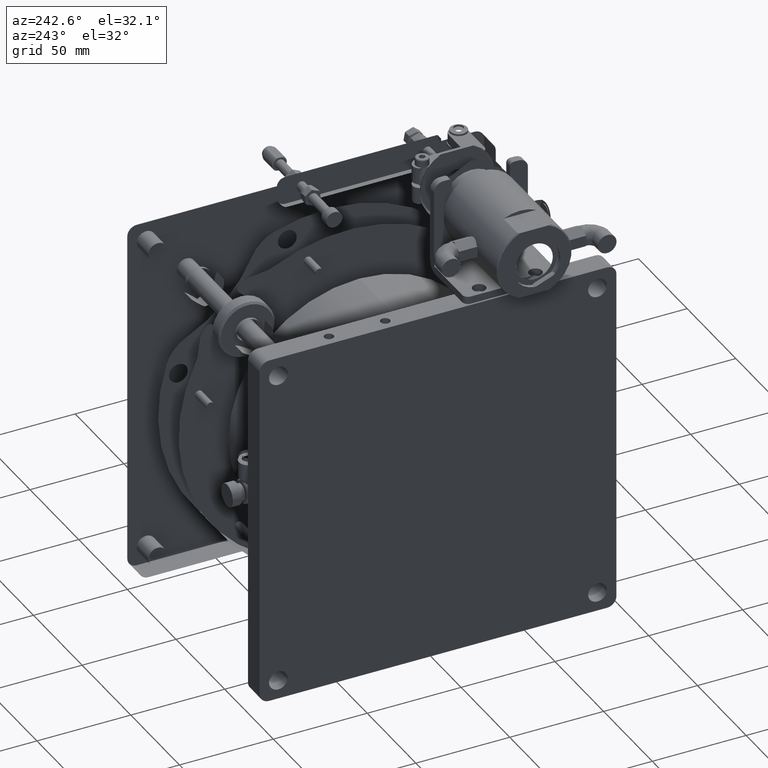
[diagram: clean part render]
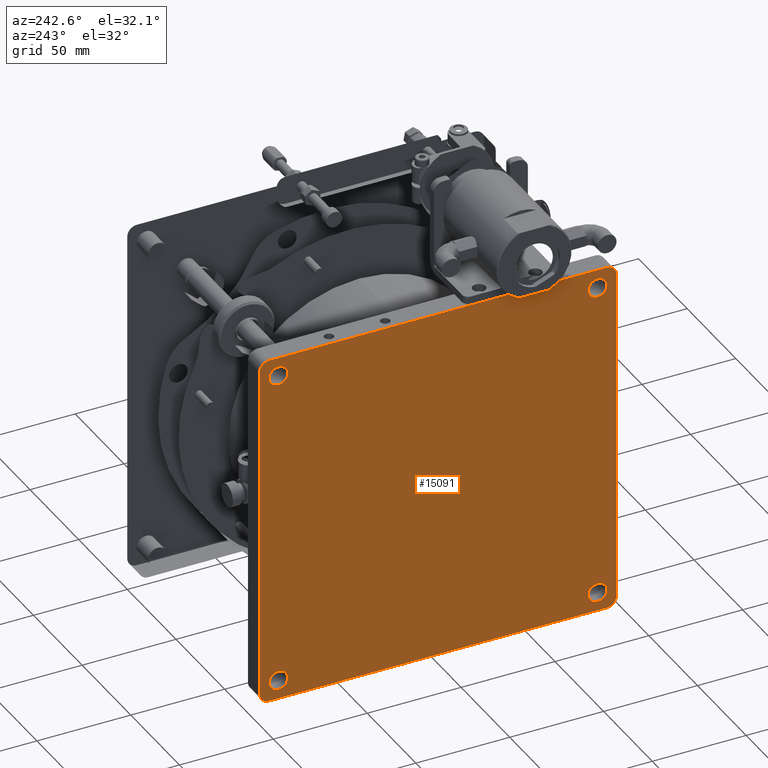
[diagram: same view with one face highlighted and labeled with its STEP entity id]
A machine part, auxiliary view. The second image highlights one B-rep face of the part: STEP entity #15091.
In plain terms, the highlighted planar face has unit normal (-1, 0, 0).
Its self-contained STEP definition (entity closure, byte-faithful):
#227 = AXIS2_PLACEMENT_3D ( 'NONE', #9605, #9264, #7826 ) ;
#336 = FACE_BOUND ( 'NONE', #3147, .T. ) ;
#343 = EDGE_LOOP ( 'NONE', ( #14167, #1604, #14176, #3132, #14072, #12506, #5297, #7758 ) ) ;
#604 = DIRECTION ( 'NONE',  ( 1.000000000000000000, -3.081487911019577365E-33, -3.473364927200038699E-17 ) ) ;
#687 = CARTESIAN_POINT ( 'NONE',  ( 423.7315486138145957, -90.00000000000000000, 705.0354284903501139 ) ) ;
#1347 = DIRECTION ( 'NONE',  ( -1.000000000000000000, 3.081487911019577365E-33, 3.473364927200038699E-17 ) ) ;
#1580 = CARTESIAN_POINT ( 'NONE',  ( 423.7315486138145957, -1.151856388049034573E-15, 610.0354284903502275 ) ) ;
#1604 = ORIENTED_EDGE ( 'NONE', *, *, #8467, .T. ) ;
#1615 = CIRCLE ( 'NONE', #18976, 5.000000000000004441 ) ;
#1736 = DIRECTION ( 'NONE',  ( -1.000000000000000000, 3.081487911019577365E-33, 3.473364927200038699E-17 ) ) ;
#1746 = VERTEX_POINT ( 'NONE', #12936 ) ;
#1803 = VERTEX_POINT ( 'NONE', #8671 ) ;
#1876 = CARTESIAN_POINT ( 'NONE',  ( 423.7315486138145957, 90.00000000000004263, 700.0354284903501139 ) ) ;
#2525 = VERTEX_POINT ( 'NONE', #8289 ) ;
#2584 = DIRECTION ( 'NONE',  ( 0.000000000000000000, 0.000000000000000000, 1.000000000000000000 ) ) ;
#2601 = ORIENTED_EDGE ( 'NONE', *, *, #20443, .T. ) ;
#2888 = CARTESIAN_POINT ( 'NONE',  ( 423.7315486138145957, -95.00000000000002842, 520.0354284903502275 ) ) ;
#3022 = VERTEX_POINT ( 'NONE', #18673 ) ;
#3132 = ORIENTED_EDGE ( 'NONE', *, *, #5907, .T. ) ;
#3147 = EDGE_LOOP ( 'NONE', ( #4091 ) ) ;
#3188 = CARTESIAN_POINT ( 'NONE',  ( 423.7315486138145957, -1.151856388049034573E-15, 515.0354284903502275 ) ) ;
#3488 = CIRCLE ( 'NONE', #16958, 5.000000000000004441 ) ;
#3567 = VERTEX_POINT ( 'NONE', #7002 ) ;
#3588 = DIRECTION ( 'NONE',  ( -3.473364927200038699E-17, -0.000000000000000000, -1.000000000000000000 ) ) ;
#3610 = VERTEX_POINT ( 'NONE', #687 ) ;
#3735 = CIRCLE ( 'NONE', #17548, 5.000000000000004441 ) ;
#3757 = FACE_BOUND ( 'NONE', #14076, .T. ) ;
#3846 = VERTEX_POINT ( 'NONE', #2888 ) ;
#3965 = EDGE_CURVE ( 'NONE', #1746, #3846, #6910, .T. ) ;
#4031 = AXIS2_PLACEMENT_3D ( 'NONE', #17046, #1736, #20345 ) ;
#4091 = ORIENTED_EDGE ( 'NONE', *, *, #15567, .T. ) ;
#4130 = VECTOR ( 'NONE', #21293, 1000.000000000000000 ) ;
#4844 = LINE ( 'NONE', #3188, #5442 ) ;
#4975 = CARTESIAN_POINT ( 'NONE',  ( 423.7315486138145957, 95.00000000000002842, 520.0354284903502275 ) ) ;
#5006 = CARTESIAN_POINT ( 'NONE',  ( 423.7315486138145957, 85.00000000000004263, 530.0354284903502275 ) ) ;
#5024 = DIRECTION ( 'NONE',  ( 1.000000000000000000, -3.081487911019577365E-33, -3.473364927200038699E-17 ) ) ;
#5178 = DIRECTION ( 'NONE',  ( -3.081487911019577365E-33, -1.000000000000000000, 1.070313203372631366E-49 ) ) ;
#5297 = ORIENTED_EDGE ( 'NONE', *, *, #18812, .T. ) ;
#5327 = EDGE_CURVE ( 'NONE', #20063, #1746, #4844, .T. ) ;
#5442 = VECTOR ( 'NONE', #5178, 1000.000000000000000 ) ;
#5497 = CIRCLE ( 'NONE', #227, 5.000000000000004441 ) ;
#5509 = VERTEX_POINT ( 'NONE', #21564 ) ;
#5907 = EDGE_CURVE ( 'NONE', #7259, #20063, #7938, .T. ) ;
#6194 = AXIS2_PLACEMENT_3D ( 'NONE', #16538, #1347, #12992 ) ;
#6910 = CIRCLE ( 'NONE', #6194, 5.000000000000004441 ) ;
#7002 = CARTESIAN_POINT ( 'NONE',  ( 423.7315486138145957, -84.99999999999997158, 700.0354284903502275 ) ) ;
#7259 = VERTEX_POINT ( 'NONE', #4975 ) ;
#7313 = EDGE_LOOP ( 'NONE', ( #2601 ) ) ;
#7758 = ORIENTED_EDGE ( 'NONE', *, *, #21788, .T. ) ;
#7826 = DIRECTION ( 'NONE',  ( 0.000000000000000000, 0.000000000000000000, 1.000000000000000000 ) ) ;
#7938 = CIRCLE ( 'NONE', #4031, 5.000000000000004441 ) ;
#8192 = CARTESIAN_POINT ( 'NONE',  ( 423.7315486138145957, -95.00000000000002842, 610.0354284903502275 ) ) ;
#8289 = CARTESIAN_POINT ( 'NONE',  ( 423.7315486138145957, 95.00000000000005684, 700.0354284903502275 ) ) ;
#8312 = DIRECTION ( 'NONE',  ( -1.000000000000000000, 3.081487911019577365E-33, 3.473364927200038699E-17 ) ) ;
#8366 = CARTESIAN_POINT ( 'NONE',  ( 423.7315486138145957, 95.00000000000005684, 610.0354284903502275 ) ) ;
#8467 = EDGE_CURVE ( 'NONE', #14214, #2525, #9060, .T. ) ;
#8671 = CARTESIAN_POINT ( 'NONE',  ( 423.7315486138145957, -84.99999999999997158, 530.0354284903502275 ) ) ;
#9060 = CIRCLE ( 'NONE', #18658, 5.000000000000004441 ) ;
#9104 = CARTESIAN_POINT ( 'NONE',  ( 423.7315486138145957, -1.151856388049034573E-15, 705.0354284903502275 ) ) ;
#9264 = DIRECTION ( 'NONE',  ( -1.000000000000000000, 3.081487911019577365E-33, 3.473364927200038699E-17 ) ) ;
#9605 = CARTESIAN_POINT ( 'NONE',  ( 423.7315486138145957, -89.99999999999998579, 700.0354284903502275 ) ) ;
#10005 = CARTESIAN_POINT ( 'NONE',  ( 423.7315486138145957, -84.99999999999997158, 525.0354284903502275 ) ) ;
#10013 = DIRECTION ( 'NONE',  ( -1.000000000000000000, 3.081487911019577365E-33, 3.473364927200038699E-17 ) ) ;
#10206 = DIRECTION ( 'NONE',  ( 0.000000000000000000, 0.000000000000000000, 1.000000000000000000 ) ) ;
#10685 = EDGE_CURVE ( 'NONE', #3610, #14214, #10766, .T. ) ;
#10766 = LINE ( 'NONE', #9104, #4130 ) ;
#11675 = FACE_BOUND ( 'NONE', #20113, .T. ) ;
#11785 = DIRECTION ( 'NONE',  ( 3.473364927200038699E-17, 0.000000000000000000, 1.000000000000000000 ) ) ;
#12111 = EDGE_CURVE ( 'NONE', #2525, #7259, #20435, .T. ) ;
#12251 = CARTESIAN_POINT ( 'NONE',  ( 423.7315486138145957, 85.00000000000004263, 525.0354284903502275 ) ) ;
#12290 = ORIENTED_EDGE ( 'NONE', *, *, #16508, .T. ) ;
#12383 = AXIS2_PLACEMENT_3D ( 'NONE', #1580, #10013, #11785 ) ;
#12506 = ORIENTED_EDGE ( 'NONE', *, *, #3965, .T. ) ;
#12936 = CARTESIAN_POINT ( 'NONE',  ( 423.7315486138145957, -90.00000000000001421, 515.0354284903502275 ) ) ;
#12992 = DIRECTION ( 'NONE',  ( 0.000000000000000000, 0.000000000000000000, 1.000000000000000000 ) ) ;
#13145 = CARTESIAN_POINT ( 'NONE',  ( 423.7315486138145957, 90.00000000000001421, 515.0354284903502275 ) ) ;
#13335 = FACE_OUTER_BOUND ( 'NONE', #343, .T. ) ;
#13445 = FACE_BOUND ( 'NONE', #7313, .T. ) ;
#13532 = CARTESIAN_POINT ( 'NONE',  ( 423.7315486138145957, 90.00000000000004263, 705.0354284903501139 ) ) ;
#14072 = ORIENTED_EDGE ( 'NONE', *, *, #5327, .T. ) ;
#14076 = EDGE_LOOP ( 'NONE', ( #18040 ) ) ;
#14167 = ORIENTED_EDGE ( 'NONE', *, *, #10685, .T. ) ;
#14176 = ORIENTED_EDGE ( 'NONE', *, *, #12111, .T. ) ;
#14214 = VERTEX_POINT ( 'NONE', #13532 ) ;
#14633 = LINE ( 'NONE', #8192, #15576 ) ;
#14951 = DIRECTION ( 'NONE',  ( 3.473364927200038699E-17, 0.000000000000000000, 1.000000000000000000 ) ) ;
#15091 = ADVANCED_FACE ( 'NONE', ( #336, #3757, #13335, #13445, #11675 ), #20206, .T. ) ;
#15331 = CARTESIAN_POINT ( 'NONE',  ( 423.7315486138145957, 85.00000000000004263, 695.0354284903502275 ) ) ;
#15567 = EDGE_CURVE ( 'NONE', #16891, #16891, #3488, .T. ) ;
#15576 = VECTOR ( 'NONE', #14951, 1000.000000000000000 ) ;
#15896 = CIRCLE ( 'NONE', #16602, 5.000000000000004441 ) ;
#16508 = EDGE_CURVE ( 'NONE', #3022, #3022, #15896, .T. ) ;
#16538 = CARTESIAN_POINT ( 'NONE',  ( 423.7315486138145957, -90.00000000000001421, 520.0354284903502275 ) ) ;
#16602 = AXIS2_PLACEMENT_3D ( 'NONE', #15331, #20424, #20852 ) ;
#16891 = VERTEX_POINT ( 'NONE', #5006 ) ;
#16913 = CARTESIAN_POINT ( 'NONE',  ( 423.7315486138145957, -84.99999999999997158, 695.0354284903502275 ) ) ;
#16958 = AXIS2_PLACEMENT_3D ( 'NONE', #12251, #604, #2584 ) ;
#17046 = CARTESIAN_POINT ( 'NONE',  ( 423.7315486138145957, 90.00000000000001421, 520.0354284903502275 ) ) ;
#17285 = VECTOR ( 'NONE', #3588, 1000.000000000000000 ) ;
#17548 = AXIS2_PLACEMENT_3D ( 'NONE', #10005, #18546, #21849 ) ;
#18040 = ORIENTED_EDGE ( 'NONE', *, *, #20181, .T. ) ;
#18546 = DIRECTION ( 'NONE',  ( 1.000000000000000000, -3.081487911019577365E-33, -3.473364927200038699E-17 ) ) ;
#18658 = AXIS2_PLACEMENT_3D ( 'NONE', #1876, #8312, #10206 ) ;
#18673 = CARTESIAN_POINT ( 'NONE',  ( 423.7315486138145957, 85.00000000000004263, 700.0354284903502275 ) ) ;
#18812 = EDGE_CURVE ( 'NONE', #3846, #5509, #14633, .T. ) ;
#18976 = AXIS2_PLACEMENT_3D ( 'NONE', #16913, #5024, #20225 ) ;
#20063 = VERTEX_POINT ( 'NONE', #13145 ) ;
#20113 = EDGE_LOOP ( 'NONE', ( #12290 ) ) ;
#20181 = EDGE_CURVE ( 'NONE', #3567, #3567, #1615, .T. ) ;
#20206 = PLANE ( 'NONE',  #12383 ) ;
#20225 = DIRECTION ( 'NONE',  ( 0.000000000000000000, 0.000000000000000000, 1.000000000000000000 ) ) ;
#20345 = DIRECTION ( 'NONE',  ( 0.000000000000000000, 0.000000000000000000, 1.000000000000000000 ) ) ;
#20424 = DIRECTION ( 'NONE',  ( 1.000000000000000000, -3.081487911019577365E-33, -3.473364927200038699E-17 ) ) ;
#20435 = LINE ( 'NONE', #8366, #17285 ) ;
#20443 = EDGE_CURVE ( 'NONE', #1803, #1803, #3735, .T. ) ;
#20852 = DIRECTION ( 'NONE',  ( 0.000000000000000000, 0.000000000000000000, 1.000000000000000000 ) ) ;
#21293 = DIRECTION ( 'NONE',  ( 3.081487911019577365E-33, 1.000000000000000000, -1.070313203372631366E-49 ) ) ;
#21564 = CARTESIAN_POINT ( 'NONE',  ( 423.7315486138145957, -95.00000000000000000, 700.0354284903502275 ) ) ;
#21788 = EDGE_CURVE ( 'NONE', #5509, #3610, #5497, .T. ) ;
#21849 = DIRECTION ( 'NONE',  ( 0.000000000000000000, 0.000000000000000000, 1.000000000000000000 ) ) ;